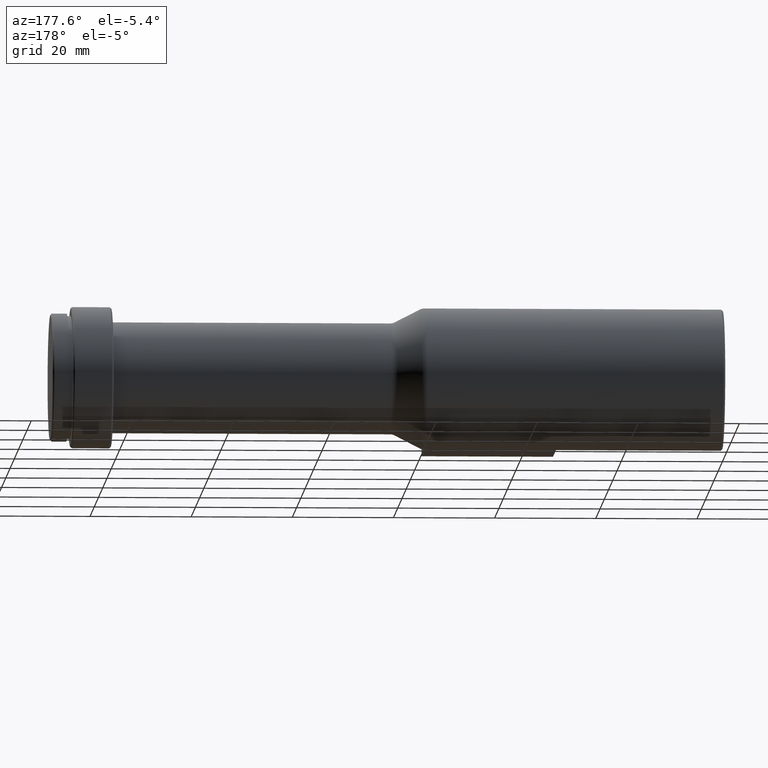
[diagram: clean part render]
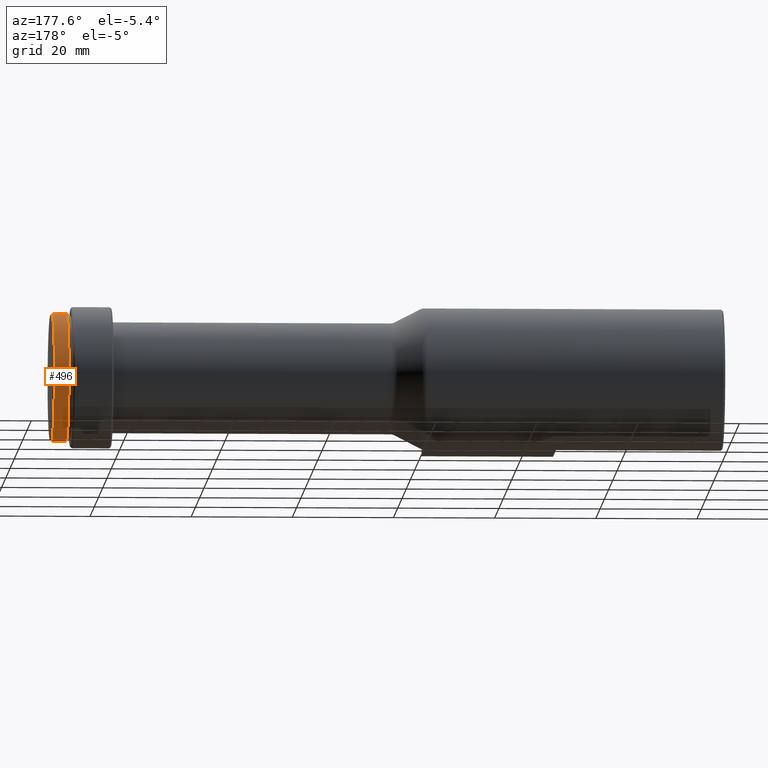
[diagram: same view with one face highlighted and labeled with its STEP entity id]
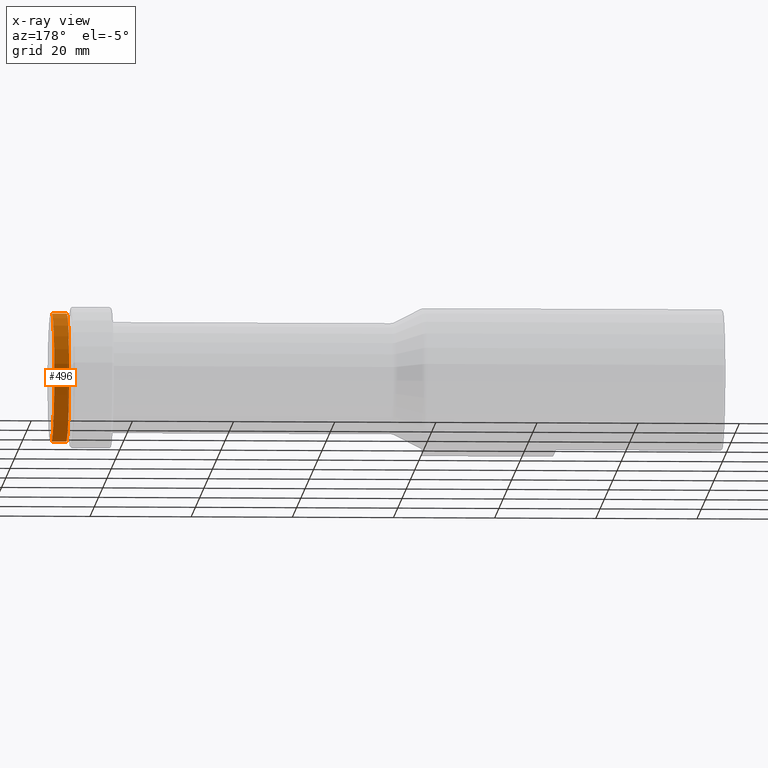
[diagram: x-ray of the same camera — body ghosted, the highlighted face saturated]
A machine part, auxiliary view. The second image highlights one B-rep face of the part: STEP entity #496.
The next image is the same camera in x-ray: the body ghosted, the highlighted face saturated — about 0% of this face is hidden behind the body in this view.
In plain terms, the highlighted cylindrical surface (partial cylindrical patch) has radius 12.7 mm, axis along (-1, -0, -0).
Its self-contained STEP definition (entity closure, byte-faithful):
#17 = EDGE_CURVE ( 'NONE', #844, #782, #157, .T. ) ;
#34 = VECTOR ( 'NONE', #485, 1000.000000000000000 ) ;
#44 = ORIENTED_EDGE ( 'NONE', *, *, #17, .F. ) ;
#48 = VERTEX_POINT ( 'NONE', #561 ) ;
#58 = EDGE_CURVE ( 'NONE', #525, #48, #794, .T. ) ;
#128 = DIRECTION ( 'NONE',  ( -1.000000000000000000, -0.0000000000000000000, -0.0000000000000000000 ) ) ;
#131 = VECTOR ( 'NONE', #301, 1000.000000000000000 ) ;
#151 = FACE_OUTER_BOUND ( 'NONE', #375, .T. ) ;
#157 = LINE ( 'NONE', #731, #131 ) ;
#169 = EDGE_CURVE ( 'NONE', #844, #525, #623, .T. ) ;
#204 = DIRECTION ( 'NONE',  ( -1.000000000000000000, -0.0000000000000000000, -0.0000000000000000000 ) ) ;
#246 = AXIS2_PLACEMENT_3D ( 'NONE', #715, #204, #295 ) ;
#295 = DIRECTION ( 'NONE',  ( 0.0000000000000000000, 0.0000000000000000000, 1.000000000000000000 ) ) ;
#301 = DIRECTION ( 'NONE',  ( -1.000000000000000000, -0.0000000000000000000, -0.0000000000000000000 ) ) ;
#322 = DIRECTION ( 'NONE',  ( 0.0000000000000000000, 0.0000000000000000000, 1.000000000000000000 ) ) ;
#375 = EDGE_LOOP ( 'NONE', ( #1096, #424, #754, #44 ) ) ;
#424 = ORIENTED_EDGE ( 'NONE', *, *, #58, .T. ) ;
#484 = CARTESIAN_POINT ( 'NONE',  ( 132.6000000000000200, 0.0000000000000000000, 0.0000000000000000000 ) ) ;
#485 = DIRECTION ( 'NONE',  ( -1.000000000000000000, -0.0000000000000000000, -0.0000000000000000000 ) ) ;
#486 = CYLINDRICAL_SURFACE ( 'NONE', #246, 12.70000000000000500 ) ;
#496 = ADVANCED_FACE ( 'NONE', ( #151 ), #486, .T. ) ;
#506 = EDGE_CURVE ( 'NONE', #782, #48, #921, .T. ) ;
#519 = AXIS2_PLACEMENT_3D ( 'NONE', #1062, #128, #730 ) ;
#525 = VERTEX_POINT ( 'NONE', #971 ) ;
#561 = CARTESIAN_POINT ( 'NONE',  ( 129.7000000000000200, 1.555301434917139000E-015, -12.70000000000000500 ) ) ;
#582 = CARTESIAN_POINT ( 'NONE',  ( 129.7000000000000200, 0.0000000000000000000, 12.70000000000000500 ) ) ;
#603 = CARTESIAN_POINT ( 'NONE',  ( 132.6000000000000200, 0.0000000000000000000, 12.70000000000000500 ) ) ;
#623 = CIRCLE ( 'NONE', #667, 12.70000000000000500 ) ;
#667 = AXIS2_PLACEMENT_3D ( 'NONE', #484, #928, #322 ) ;
#715 = CARTESIAN_POINT ( 'NONE',  ( 0.0000000000000000000, 0.0000000000000000000, 0.0000000000000000000 ) ) ;
#730 = DIRECTION ( 'NONE',  ( 0.0000000000000000000, 0.0000000000000000000, 1.000000000000000000 ) ) ;
#731 = CARTESIAN_POINT ( 'NONE',  ( 0.0000000000000000000, 0.0000000000000000000, 12.70000000000000500 ) ) ;
#754 = ORIENTED_EDGE ( 'NONE', *, *, #506, .F. ) ;
#782 = VERTEX_POINT ( 'NONE', #582 ) ;
#794 = LINE ( 'NONE', #819, #34 ) ;
#819 = CARTESIAN_POINT ( 'NONE',  ( 0.0000000000000000000, 1.555301434917139000E-015, -12.70000000000000500 ) ) ;
#844 = VERTEX_POINT ( 'NONE', #603 ) ;
#921 = CIRCLE ( 'NONE', #519, 12.70000000000000500 ) ;
#928 = DIRECTION ( 'NONE',  ( -1.000000000000000000, -0.0000000000000000000, -0.0000000000000000000 ) ) ;
#971 = CARTESIAN_POINT ( 'NONE',  ( 132.6000000000000200, 1.555301434917139000E-015, -12.70000000000000500 ) ) ;
#1062 = CARTESIAN_POINT ( 'NONE',  ( 129.7000000000000200, 0.0000000000000000000, 0.0000000000000000000 ) ) ;
#1096 = ORIENTED_EDGE ( 'NONE', *, *, #169, .T. ) ;